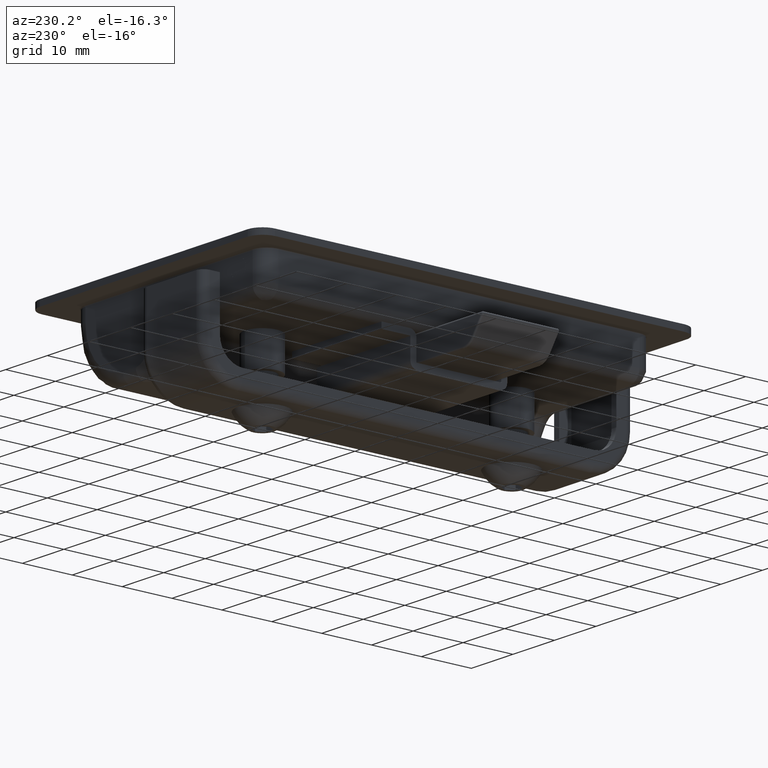
[diagram: clean part render]
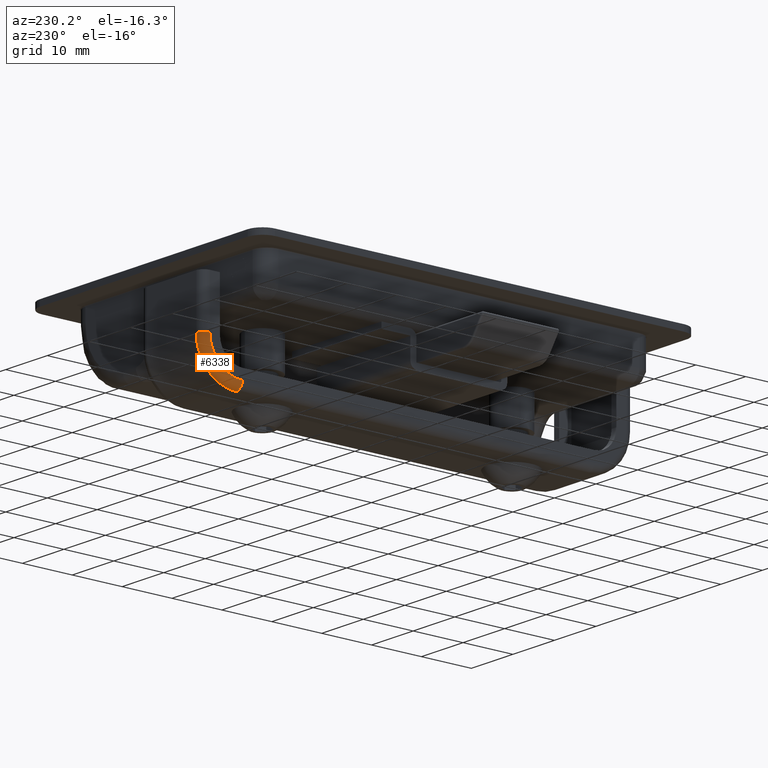
[diagram: same view with one face highlighted and labeled with its STEP entity id]
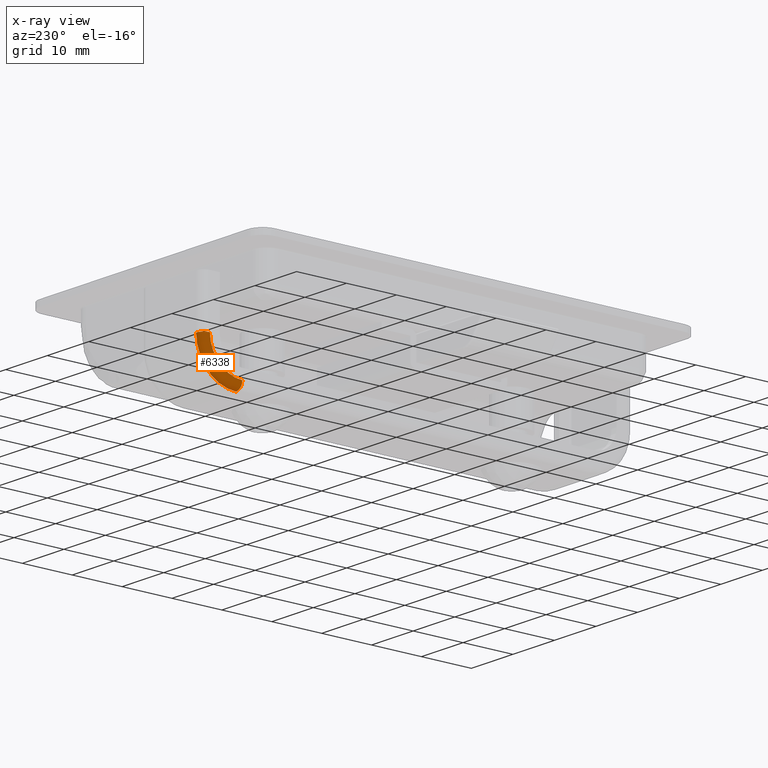
[diagram: x-ray of the same camera — body ghosted, the highlighted face saturated]
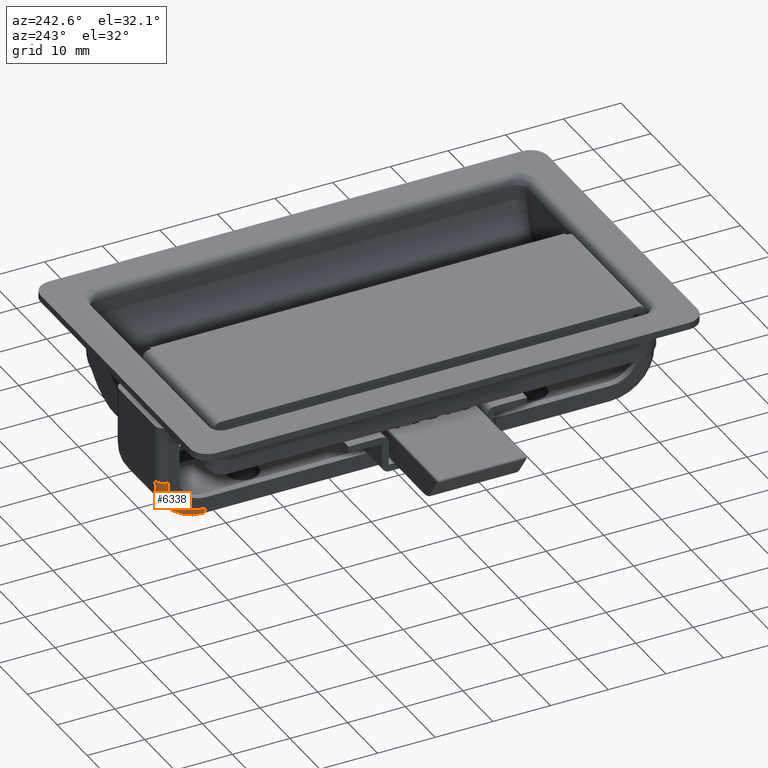
[diagram: same view with one face highlighted and labeled with its STEP entity id]
A machine part, auxiliary view. The second image highlights one B-rep face of the part: STEP entity #6338.
The next image is the same camera in x-ray: the body ghosted, the highlighted face saturated — about 0% of this face is hidden behind the body in this view.
A second angle (auxiliary view) of the same face is appended — the face is thin or edge-on in the first view.
In plain terms, the highlighted toroidal blend (fillet) surface has major radius 6.5 mm and minor (blend) radius 1.5 mm.
Its self-contained STEP definition (entity closure, byte-faithful):
#148=TOROIDAL_SURFACE('',#7003,6.5,1.5);
#1857=FACE_OUTER_BOUND('',#2294,.T.);
#2294=EDGE_LOOP('',(#5594,#5595,#5596,#5597));
#2635=CIRCLE('',#6981,1.5);
#2645=CIRCLE('',#7002,8.00000000000001);
#2646=CIRCLE('',#7004,1.5);
#2647=CIRCLE('',#7005,6.5);
#3124=VERTEX_POINT('',#12313);
#3126=VERTEX_POINT('',#12319);
#3145=VERTEX_POINT('',#12380);
#3146=VERTEX_POINT('',#12384);
#3944=EDGE_CURVE('',#3126,#3124,#2635,.T.);
#3976=EDGE_CURVE('',#3145,#3124,#2645,.T.);
#3977=EDGE_CURVE('',#3146,#3145,#2646,.T.);
#3978=EDGE_CURVE('',#3146,#3126,#2647,.T.);
#5594=ORIENTED_EDGE('',*,*,#3976,.F.);
#5595=ORIENTED_EDGE('',*,*,#3977,.F.);
#5596=ORIENTED_EDGE('',*,*,#3978,.T.);
#5597=ORIENTED_EDGE('',*,*,#3944,.T.);
#6338=ADVANCED_FACE('',(#1857),#148,.T.);
#6981=AXIS2_PLACEMENT_3D('',#12320,#8704,#8705);
#7002=AXIS2_PLACEMENT_3D('',#12382,#8768,#8769);
#7003=AXIS2_PLACEMENT_3D('',#12383,#8770,#8771);
#7004=AXIS2_PLACEMENT_3D('',#12385,#8772,#8773);
#7005=AXIS2_PLACEMENT_3D('',#12386,#8774,#8775);
#8704=DIRECTION('center_axis',(0.,1.,0.));
#8705=DIRECTION('ref_axis',(0.,0.,1.));
#8768=DIRECTION('center_axis',(0.,0.,-1.));
#8769=DIRECTION('ref_axis',(1.73472347597681E-15,1.,0.));
#8770=DIRECTION('center_axis',(0.,0.,-1.));
#8771=DIRECTION('ref_axis',(-1.,0.,0.));
#8772=DIRECTION('center_axis',(-1.,-1.96848054011553E-16,0.));
#8773=DIRECTION('ref_axis',(0.,0.,1.));
#8774=DIRECTION('center_axis',(0.,0.,-1.));
#8775=DIRECTION('ref_axis',(2.1350442781253E-15,1.,0.));
#12313=CARTESIAN_POINT('',(43.25,9.99999999999999,6.));
#12319=CARTESIAN_POINT('',(41.75,9.99999999999999,7.5));
#12320=CARTESIAN_POINT('Origin',(41.75,9.99999999999999,6.));
#12380=CARTESIAN_POINT('',(35.25,18.,6.));
#12382=CARTESIAN_POINT('Origin',(35.25,10.,6.));
#12383=CARTESIAN_POINT('Origin',(35.25,10.,6.));
#12384=CARTESIAN_POINT('',(35.25,16.5,7.5));
#12385=CARTESIAN_POINT('Origin',(35.25,16.5,6.));
#12386=CARTESIAN_POINT('Origin',(35.25,10.,7.5));